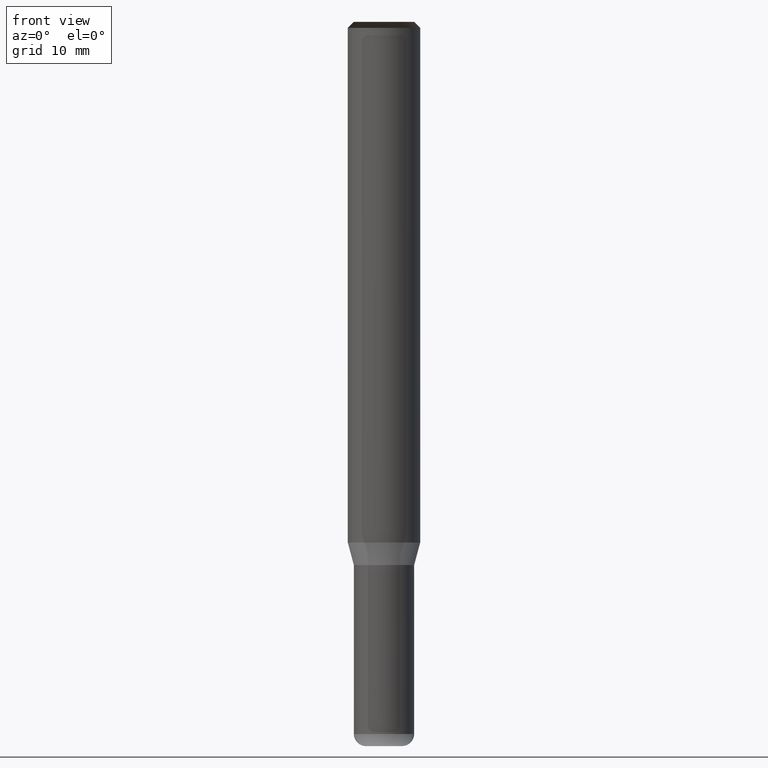
[diagram: clean part render]
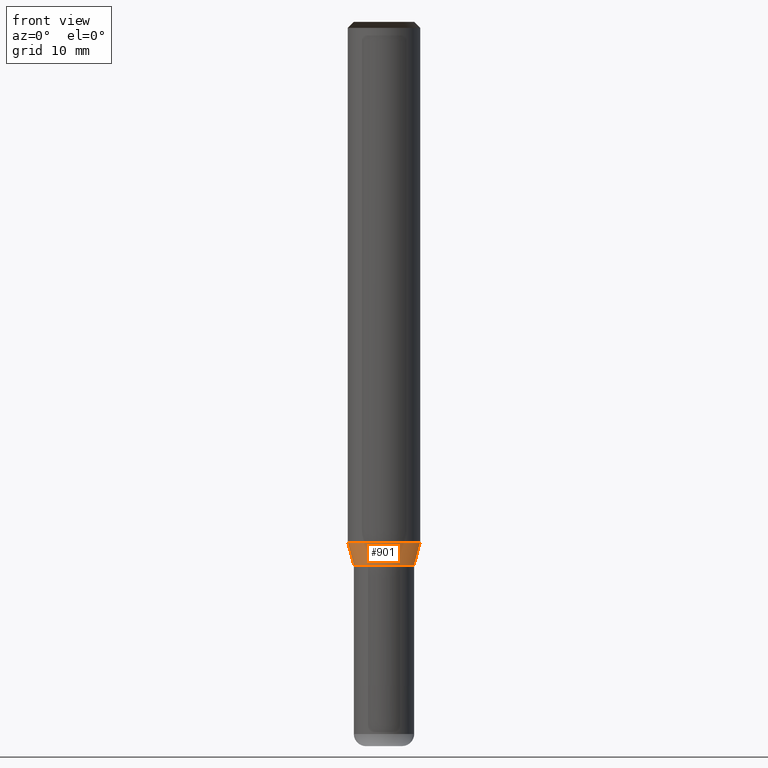
[diagram: same view with one face highlighted and labeled with its STEP entity id]
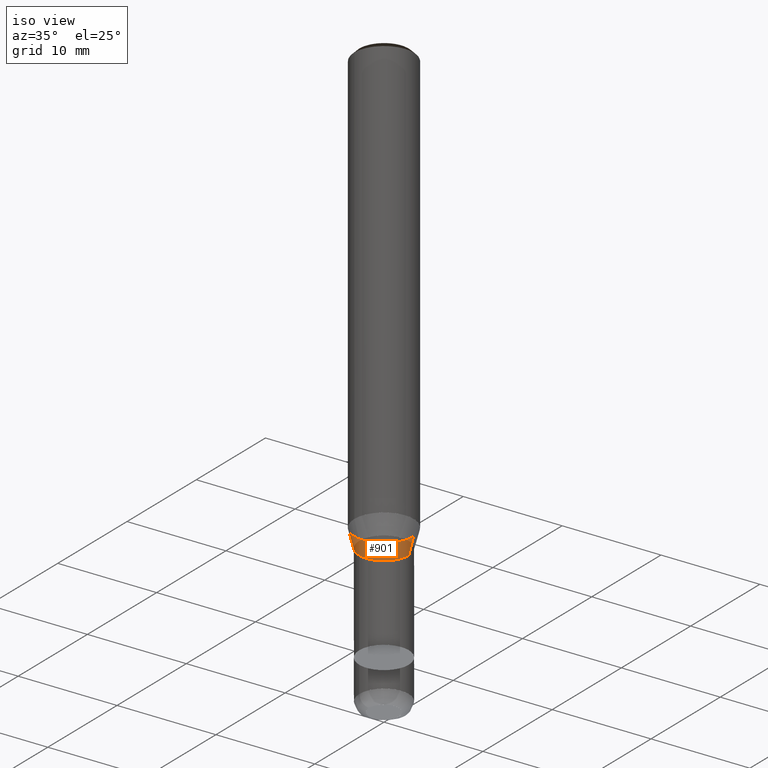
[diagram: same view with one face highlighted and labeled with its STEP entity id]
A machine part, front view. The second image highlights one B-rep face of the part: STEP entity #901.
A second angle (iso view) of the same face is appended — the face is thin or edge-on in the first view.
In plain terms, the highlighted face is a freeform B-spline surface patch.
Its self-contained STEP definition (entity closure, byte-faithful):
#546=CARTESIAN_POINT('',(2.5,0.0,-1.866025403784));
#550=CARTESIAN_POINT('',(-2.5,0.0,-1.866025403784));
#551=CARTESIAN_POINT('',(3.0,0.0,0.0));
#555=CARTESIAN_POINT('',(-3.0,0.0,0.0));
#567=CARTESIAN_POINT('',(-2.5,-2.5,-1.866025403784));
#568=CARTESIAN_POINT('',(0.0,-2.5,-1.866025403784));
#569=CARTESIAN_POINT('',(2.5,-2.5,-1.866025403784));
#570=CARTESIAN_POINT('',(-3.0,-3.0,0.0));
#571=CARTESIAN_POINT('',(0.0,-3.0,0.0));
#572=CARTESIAN_POINT('',(3.0,-3.0,0.0));
#882=(
BOUNDED_SURFACE()
B_SPLINE_SURFACE(1,2,(
(#550,#567,#568,#569,#546),
(#555,#570,#571,#572,#551)
), .UNSPECIFIED.,.F.,.F.,.F.)
B_SPLINE_SURFACE_WITH_KNOTS((2,2),(3,2,3),(
0.0,1.0),(
0.0,0.5,1.0), .UNSPECIFIED.)
GEOMETRIC_REPRESENTATION_ITEM()
RATIONAL_B_SPLINE_SURFACE(((1.0,0.707106781187,1.0,0.707106781187,1.0),
(1.0,0.707106781187,1.0,0.707106781187,1.0)
))
REPRESENTATION_ITEM('')
SURFACE()
);
#883=(
BOUNDED_CURVE()
B_SPLINE_CURVE(1,(#555,#550),.UNSPECIFIED.,.F.,.F.)
B_SPLINE_CURVE_WITH_KNOTS((2,2),
(0.0,1.0),.UNSPECIFIED.)
CURVE()
GEOMETRIC_REPRESENTATION_ITEM()
RATIONAL_B_SPLINE_CURVE((1.0,1.0))
REPRESENTATION_ITEM('')
);
#884=(
BOUNDED_CURVE()
B_SPLINE_CURVE(2,(#550,#567,#568,#569,#546),.UNSPECIFIED.,.F.,.F.)
B_SPLINE_CURVE_WITH_KNOTS((3,2,3),
(0.0,0.5,1.0),.UNSPECIFIED.)
CURVE()
GEOMETRIC_REPRESENTATION_ITEM()
RATIONAL_B_SPLINE_CURVE((1.0,0.707106781187,1.0,0.707106781187,1.0))
REPRESENTATION_ITEM('')
);
#885=(
BOUNDED_CURVE()
B_SPLINE_CURVE(1,(#546,#551),.UNSPECIFIED.,.F.,.F.)
B_SPLINE_CURVE_WITH_KNOTS((2,2),
(0.0,1.0),.UNSPECIFIED.)
CURVE()
GEOMETRIC_REPRESENTATION_ITEM()
RATIONAL_B_SPLINE_CURVE((1.0,1.0))
REPRESENTATION_ITEM('')
);
#886=(
BOUNDED_CURVE()
B_SPLINE_CURVE(2,(#551,#572,#571,#570,#555),.UNSPECIFIED.,.F.,.F.)
B_SPLINE_CURVE_WITH_KNOTS((3,2,3),
(0.0,0.5,1.0),.UNSPECIFIED.)
CURVE()
GEOMETRIC_REPRESENTATION_ITEM()
RATIONAL_B_SPLINE_CURVE((1.0,0.707106781187,1.0,0.707106781187,1.0))
REPRESENTATION_ITEM('')
);
#887=VERTEX_POINT('',#546);
#888=VERTEX_POINT('',#550);
#889=VERTEX_POINT('',#551);
#890=VERTEX_POINT('',#555);
#891=EDGE_CURVE('',#890,#888,#883,.T.);
#892=EDGE_CURVE('',#888,#887,#884,.T.);
#893=EDGE_CURVE('',#887,#889,#885,.T.);
#894=EDGE_CURVE('',#889,#890,#886,.T.);
#895=ORIENTED_EDGE('',*,*,#891,.T.);
#896=ORIENTED_EDGE('',*,*,#892,.T.);
#897=ORIENTED_EDGE('',*,*,#893,.T.);
#898=ORIENTED_EDGE('',*,*,#894,.T.);
#899=EDGE_LOOP('',(#895,#896,#897,#898));
#900=FACE_OUTER_BOUND('',#899,.T.);
#901=ADVANCED_FACE('',(#900),#882,.T.);